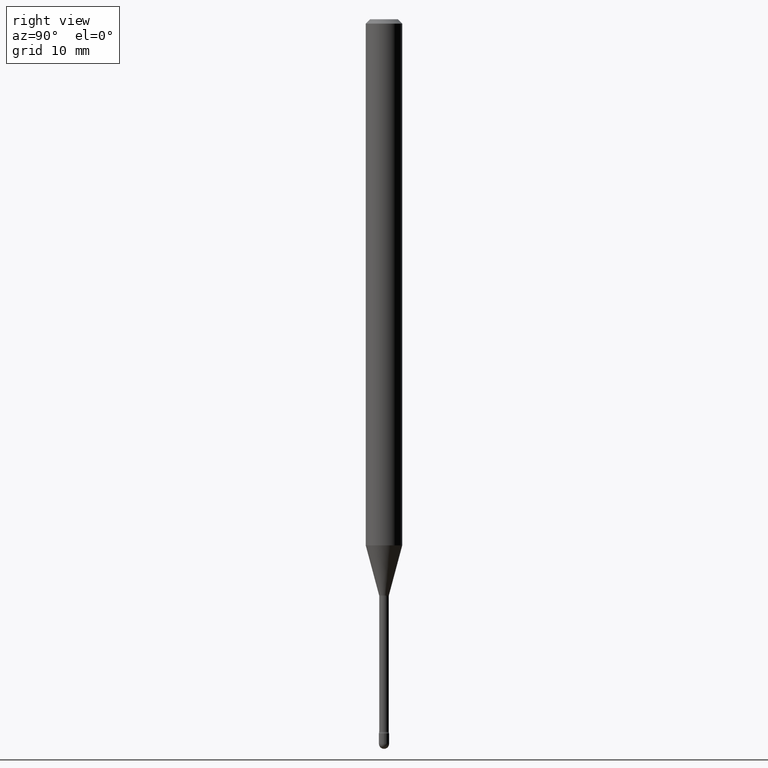
[diagram: clean part render]
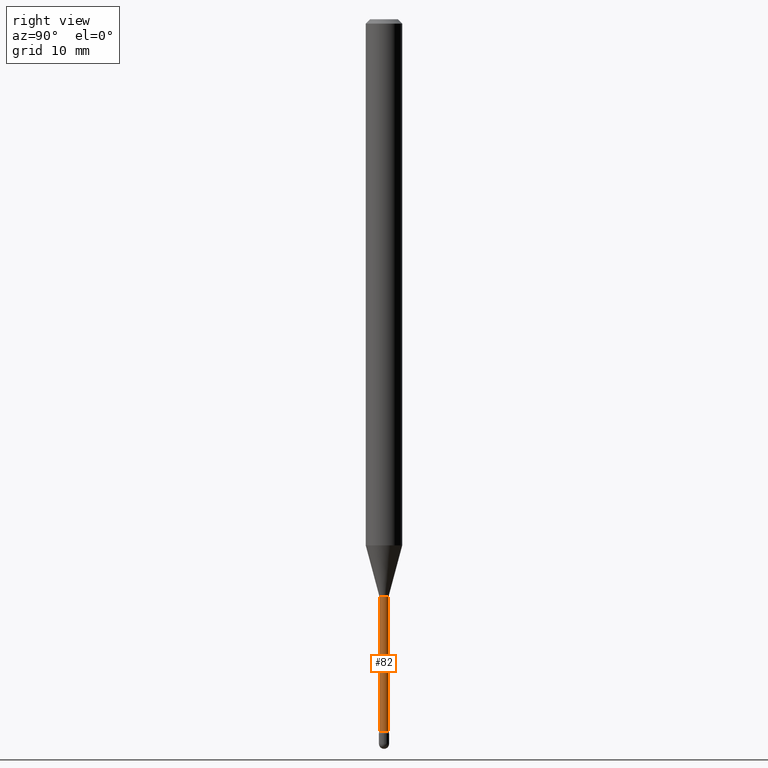
[diagram: same view with one face highlighted and labeled with its STEP entity id]
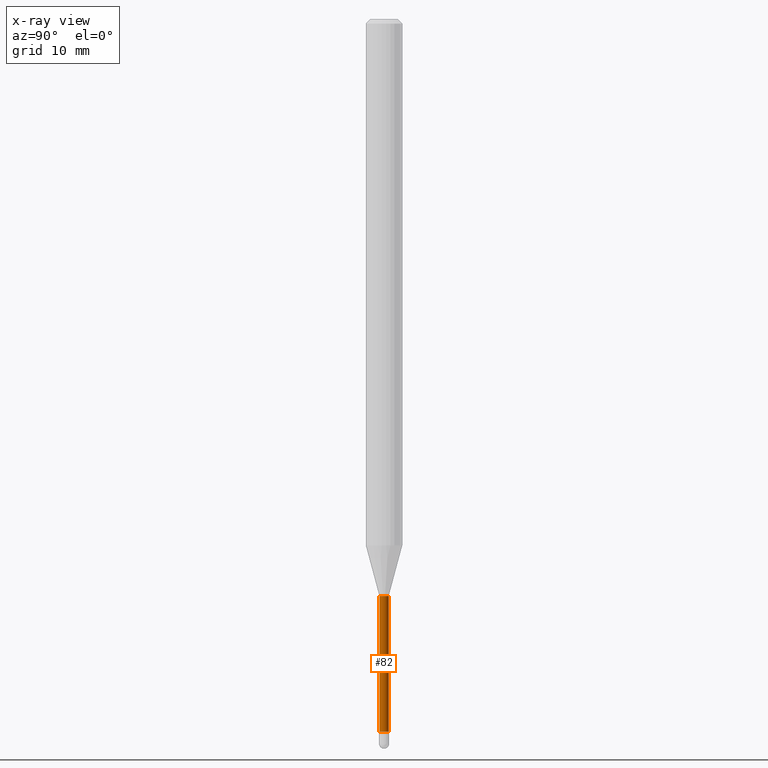
[diagram: x-ray of the same camera — body ghosted, the highlighted face saturated]
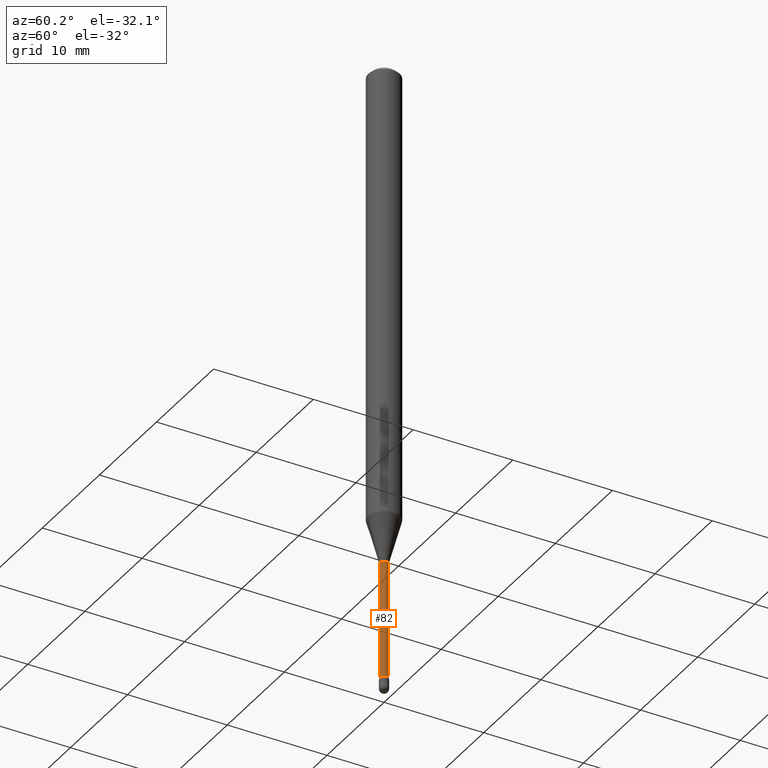
[diagram: same view with one face highlighted and labeled with its STEP entity id]
A machine part, right view. The second image highlights one B-rep face of the part: STEP entity #82.
The next image is the same camera in x-ray: the body ghosted, the highlighted face saturated — about 0% of this face is hidden behind the body in this view.
A second angle (auxiliary view) of the same face is appended — the face is thin or edge-on in the first view.
In plain terms, the highlighted cylindrical surface (edge-blend (fillet) strip) has radius 0.4178 mm, axis along (-0, 0, 1).
Its self-contained STEP definition (entity closure, byte-faithful):
#21 = EDGE_CURVE ( 'NONE', #520, #548, #343, .T. ) ;
#54 = CARTESIAN_POINT ( 'NONE',  ( 1.206146293953369389E-16, 0.01644999999999155124, -2.441486607215153537 ) ) ;
#75 = LINE ( 'NONE', #516, #549 ) ;
#82 = ADVANCED_FACE ( 'NONE', ( #408 ), #541, .T. ) ;
#85 = CIRCLE ( 'NONE', #160, 0.01645000000000007567 ) ;
#92 = VECTOR ( 'NONE', #518, 39.37007874015748143 ) ;
#100 = DIRECTION ( 'NONE',  ( -6.982962677686265133E-15, -1.000000000000000000, 0.000000000000000000 ) ) ;
#135 = ORIENTED_EDGE ( 'NONE', *, *, #192, .T. ) ;
#137 = CARTESIAN_POINT ( 'NONE',  ( 5.970598074217557252E-29, -8.524378097747317982E-15, -2.441486607215153537 ) ) ;
#159 = AXIS2_PLACEMENT_3D ( 'NONE', #534, #489, #100 ) ;
#160 = AXIS2_PLACEMENT_3D ( 'NONE', #137, #488, #394 ) ;
#192 = EDGE_CURVE ( 'NONE', #443, #548, #75, .T. ) ;
#242 = AXIS2_PLACEMENT_3D ( 'NONE', #321, #367, #278 ) ;
#266 = EDGE_CURVE ( 'NONE', #324, #520, #378, .T. ) ;
#268 = ORIENTED_EDGE ( 'NONE', *, *, #266, .F. ) ;
#278 = DIRECTION ( 'NONE',  ( -6.982962677686265133E-15, -1.000000000000000000, 3.491470349481262275E-15 ) ) ;
#312 = ORIENTED_EDGE ( 'NONE', *, *, #21, .F. ) ;
#321 = CARTESIAN_POINT ( 'NONE',  ( -1.169113584055446105E-44, 1.669184350826100908E-30, 4.780733988912460139E-16 ) ) ;
#324 = VERTEX_POINT ( 'NONE', #463 ) ;
#342 = ORIENTED_EDGE ( 'NONE', *, *, #427, .T. ) ;
#343 = CIRCLE ( 'NONE', #159, 0.01644999999999999934 ) ;
#359 = CARTESIAN_POINT ( 'NONE',  ( 1.168842800325963800E-16, 0.01644999999999309515, -1.976974787463811056 ) ) ;
#367 = DIRECTION ( 'NONE',  ( -2.445476480015523833E-29, 3.491470349481263853E-15, 1.000000000000000000 ) ) ;
#370 = EDGE_LOOP ( 'NONE', ( #342, #135, #312, #268 ) ) ;
#378 = LINE ( 'NONE', #423, #92 ) ;
#380 = DIRECTION ( 'NONE',  ( -2.445476480015523833E-29, 3.491470349481263853E-15, 1.000000000000000000 ) ) ;
#390 = CARTESIAN_POINT ( 'NONE',  ( -1.148697360478907093E-16, -0.01645000000000690007, -1.976974787463811056 ) ) ;
#394 = DIRECTION ( 'NONE',  ( -6.982962677686265133E-15, -1.000000000000000000, 0.000000000000000000 ) ) ;
#408 = FACE_OUTER_BOUND ( 'NONE', #370, .T. ) ;
#423 = CARTESIAN_POINT ( 'NONE',  ( -1.148697360479393229E-16, -0.01645000000000003751, 5.355080861402129932E-16 ) ) ;
#427 = EDGE_CURVE ( 'NONE', #324, #443, #85, .T. ) ;
#443 = VERTEX_POINT ( 'NONE', #54 ) ;
#463 = CARTESIAN_POINT ( 'NONE',  ( -1.148697360478798871E-16, -0.01645000000000860010, -2.441486607215153537 ) ) ;
#488 = DIRECTION ( 'NONE',  ( -2.445476480015523833E-29, 3.491470349481263853E-15, 1.000000000000000000 ) ) ;
#489 = DIRECTION ( 'NONE',  ( -2.445476480015523833E-29, 3.491470349481263853E-15, 1.000000000000000000 ) ) ;
#516 = CARTESIAN_POINT ( 'NONE',  ( 1.168842800325367224E-16, 0.01645000000000003751, 4.206387116422791825E-16 ) ) ;
#518 = DIRECTION ( 'NONE',  ( -2.445476480015523833E-29, 3.491470349481263853E-15, 1.000000000000000000 ) ) ;
#520 = VERTEX_POINT ( 'NONE', #390 ) ;
#534 = CARTESIAN_POINT ( 'NONE',  ( 4.834645344326439414E-29, -6.902548852101920203E-15, -1.976974787463811056 ) ) ;
#541 = CYLINDRICAL_SURFACE ( 'NONE', #242, 0.01645000000000003751 ) ;
#548 = VERTEX_POINT ( 'NONE', #359 ) ;
#549 = VECTOR ( 'NONE', #380, 39.37007874015748143 ) ;